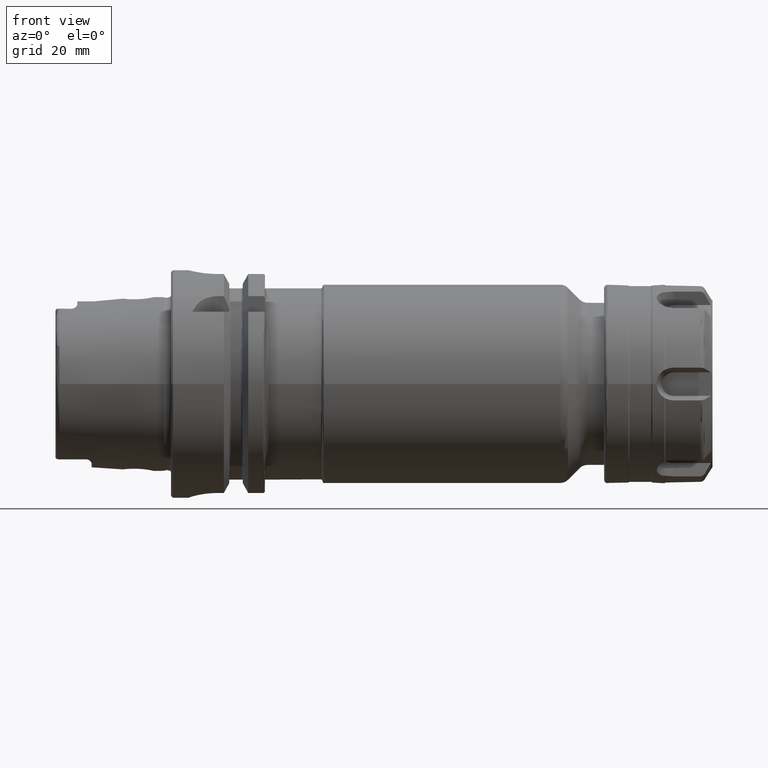
[diagram: clean part render]
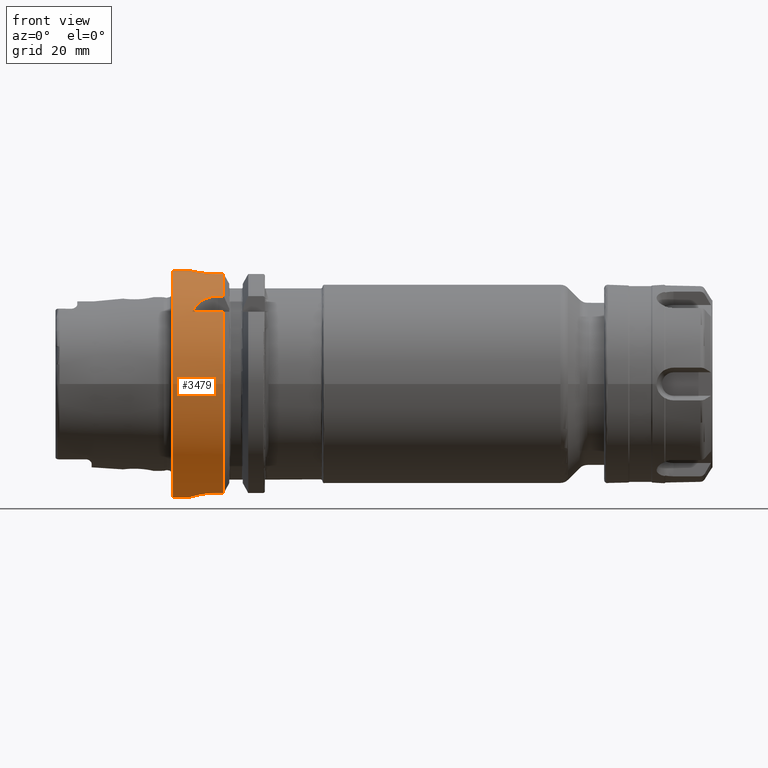
[diagram: same view with one face highlighted and labeled with its STEP entity id]
A machine part, front view. The second image highlights one B-rep face of the part: STEP entity #3479.
In plain terms, the highlighted cylindrical surface (bore or boss wall) has radius 31.5 mm, axis along (1, 0, 0).
Its self-contained STEP definition (entity closure, byte-faithful):
#84=FACE_BOUND('',#663,.T.);
#193=B_SPLINE_CURVE_WITH_KNOTS('',3,(#6184,#6185,#6186,#6187,#6188,#6189,
#6190,#6191,#6192,#6193,#6194,#6195,#6196,#6197,#6198,#6199,#6200,#6201,
#6202,#6203,#6204,#6205,#6206,#6207,#6208,#6209),.UNSPECIFIED.,.F.,.F.,
(4,2,2,2,2,2,2,2,2,2,2,2,4),(0.,0.188688694287612,0.377377388575223,0.56606194688798,
0.754746505200737,0.943431063513494,1.13211562182625,1.32080431611386,1.50949301040147,
1.69818170468909,1.8868703989767,2.07555495728945,2.26423951560221),
 .UNSPECIFIED.);
#194=B_SPLINE_CURVE_WITH_KNOTS('',3,(#6210,#6211,#6212,#6213,#6214,#6215,
#6216,#6217,#6218,#6219),.UNSPECIFIED.,.F.,.F.,(4,2,2,2,4),(2.26423951560221,
2.45292407391497,2.64160863222773,2.83029732651534,3.01898602080295),
 .UNSPECIFIED.);
#197=B_SPLINE_CURVE_WITH_KNOTS('',3,(#6276,#6277,#6278,#6279,#6280,#6281,
#6282,#6283,#6284,#6285,#6286,#6287),.UNSPECIFIED.,.F.,.F.,(4,2,2,2,2,4),
(1.1085154204615,1.31979218709236,1.52798350480179,1.73617482251122,1.90421770126337,
2.07226058001552),.UNSPECIFIED.);
#207=B_SPLINE_CURVE_WITH_KNOTS('',3,(#6456,#6457,#6458,#6459,#6460,#6461,
#6462,#6463,#6464,#6465),.UNSPECIFIED.,.F.,.F.,(4,2,2,2,4),(1.20927420824097,
1.5131742975437,1.81707438684643,2.12000449915965,2.42293461147287),
 .UNSPECIFIED.);
#210=B_SPLINE_CURVE_WITH_KNOTS('',3,(#6491,#6492,#6493,#6494,#6495,#6496,
#6497,#6498,#6499,#6500),.UNSPECIFIED.,.F.,.F.,(4,2,2,2,4),(0.,0.30293011231322,
0.605860224626439,0.90976031392917,1.2136604032319),.UNSPECIFIED.);
#220=B_SPLINE_CURVE_WITH_KNOTS('',3,(#6646,#6647,#6648,#6649,#6650,#6651,
#6652,#6653,#6654,#6655,#6656,#6657,#6658,#6659,#6660,#6661,#6662,#6663),
 .UNSPECIFIED.,.F.,.F.,(4,2,2,2,2,2,2,2,4),(0.,0.302805879979318,0.605611759958635,
0.908372461246501,1.21113316253437,1.51389386382223,1.8166545651101,2.11946044508942,
2.42226632506874),.UNSPECIFIED.);
#337=CYLINDRICAL_SURFACE('',#3855,31.5);
#453=FACE_OUTER_BOUND('',#662,.T.);
#662=EDGE_LOOP('',(#2748,#2749,#2750,#2751,#2752,#2753,#2754,#2755,#2756,
#2757,#2758,#2759,#2760,#2761,#2762,#2763,#2764,#2765));
#663=EDGE_LOOP('',(#2766,#2767));
#849=LINE('',#6251,#1017);
#854=LINE('',#6296,#1022);
#872=LINE('',#6473,#1040);
#873=LINE('',#6477,#1041);
#885=LINE('',#6640,#1053);
#888=LINE('',#6670,#1056);
#890=LINE('',#6676,#1058);
#1017=VECTOR('',#4416,10.);
#1022=VECTOR('',#4427,10.);
#1040=VECTOR('',#4491,10.);
#1041=VECTOR('',#4494,10.);
#1053=VECTOR('',#4572,10.);
#1056=VECTOR('',#4583,10.);
#1058=VECTOR('',#4591,31.5);
#1204=CIRCLE('',#3798,31.5);
#1205=CIRCLE('',#3799,31.5);
#1213=CIRCLE('',#3819,31.5);
#1214=CIRCLE('',#3821,31.5);
#1228=CIRCLE('',#3856,31.5);
#1229=CIRCLE('',#3857,31.5);
#1468=VERTEX_POINT('',#6181);
#1469=VERTEX_POINT('',#6183);
#1477=VERTEX_POINT('',#6248);
#1478=VERTEX_POINT('',#6250);
#1482=VERTEX_POINT('',#6275);
#1484=VERTEX_POINT('',#6292);
#1489=VERTEX_POINT('',#6308);
#1490=VERTEX_POINT('',#6310);
#1515=VERTEX_POINT('',#6454);
#1516=VERTEX_POINT('',#6455);
#1517=VERTEX_POINT('',#6475);
#1518=VERTEX_POINT('',#6476);
#1521=VERTEX_POINT('',#6490);
#1522=VERTEX_POINT('',#6505);
#1538=VERTEX_POINT('',#6637);
#1539=VERTEX_POINT('',#6639);
#1540=VERTEX_POINT('',#6645);
#1542=VERTEX_POINT('',#6675);
#1872=EDGE_CURVE('',#1469,#1468,#193,.T.);
#1873=EDGE_CURVE('',#1468,#1469,#194,.T.);
#1882=EDGE_CURVE('',#1478,#1477,#849,.T.);
#1888=EDGE_CURVE('',#1477,#1482,#197,.T.);
#1892=EDGE_CURVE('',#1482,#1484,#854,.T.);
#1898=EDGE_CURVE('',#1478,#1489,#1204,.T.);
#1899=EDGE_CURVE('',#1489,#1490,#1205,.T.);
#1933=EDGE_CURVE('',#1515,#1516,#207,.T.);
#1937=EDGE_CURVE('',#1516,#1490,#872,.T.);
#1938=EDGE_CURVE('',#1517,#1518,#873,.T.);
#1943=EDGE_CURVE('',#1518,#1521,#210,.T.);
#1945=EDGE_CURVE('',#1521,#1515,#1213,.T.);
#1946=EDGE_CURVE('',#1517,#1522,#1214,.T.);
#1978=EDGE_CURVE('',#1539,#1538,#885,.T.);
#1980=EDGE_CURVE('',#1538,#1540,#220,.T.);
#1984=EDGE_CURVE('',#1540,#1522,#888,.T.);
#1986=EDGE_CURVE('',#1539,#1484,#1228,.T.);
#1987=EDGE_CURVE('',#1489,#1542,#890,.T.);
#1988=EDGE_CURVE('',#1542,#1542,#1229,.T.);
#2748=ORIENTED_EDGE('',*,*,#1892,.T.);
#2749=ORIENTED_EDGE('',*,*,#1986,.F.);
#2750=ORIENTED_EDGE('',*,*,#1978,.T.);
#2751=ORIENTED_EDGE('',*,*,#1980,.T.);
#2752=ORIENTED_EDGE('',*,*,#1984,.T.);
#2753=ORIENTED_EDGE('',*,*,#1946,.F.);
#2754=ORIENTED_EDGE('',*,*,#1938,.T.);
#2755=ORIENTED_EDGE('',*,*,#1943,.T.);
#2756=ORIENTED_EDGE('',*,*,#1945,.T.);
#2757=ORIENTED_EDGE('',*,*,#1933,.T.);
#2758=ORIENTED_EDGE('',*,*,#1937,.T.);
#2759=ORIENTED_EDGE('',*,*,#1899,.F.);
#2760=ORIENTED_EDGE('',*,*,#1987,.T.);
#2761=ORIENTED_EDGE('',*,*,#1988,.T.);
#2762=ORIENTED_EDGE('',*,*,#1987,.F.);
#2763=ORIENTED_EDGE('',*,*,#1898,.F.);
#2764=ORIENTED_EDGE('',*,*,#1882,.T.);
#2765=ORIENTED_EDGE('',*,*,#1888,.T.);
#2766=ORIENTED_EDGE('',*,*,#1872,.T.);
#2767=ORIENTED_EDGE('',*,*,#1873,.T.);
#3479=ADVANCED_FACE('',(#453,#84),#337,.T.);
#3798=AXIS2_PLACEMENT_3D('',#6309,#4440,#4441);
#3799=AXIS2_PLACEMENT_3D('',#6311,#4442,#4443);
#3819=AXIS2_PLACEMENT_3D('',#6503,#4502,#4503);
#3821=AXIS2_PLACEMENT_3D('',#6506,#4506,#4507);
#3855=AXIS2_PLACEMENT_3D('',#6673,#4587,#4588);
#3856=AXIS2_PLACEMENT_3D('',#6674,#4589,#4590);
#3857=AXIS2_PLACEMENT_3D('',#6677,#4592,#4593);
#4416=DIRECTION('',(-1.,0.,0.));
#4427=DIRECTION('',(1.,0.,0.));
#4440=DIRECTION('center_axis',(1.,0.,0.));
#4441=DIRECTION('ref_axis',(0.,0.,-1.));
#4442=DIRECTION('center_axis',(1.,0.,0.));
#4443=DIRECTION('ref_axis',(0.,0.,-1.));
#4491=DIRECTION('',(1.,0.,0.));
#4494=DIRECTION('',(-1.,0.,0.));
#4502=DIRECTION('center_axis',(-1.,0.,0.));
#4503=DIRECTION('ref_axis',(0.,1.,0.));
#4506=DIRECTION('center_axis',(1.,0.,0.));
#4507=DIRECTION('ref_axis',(0.,0.,-1.));
#4572=DIRECTION('',(-1.,0.,0.));
#4583=DIRECTION('',(1.,0.,0.));
#4587=DIRECTION('center_axis',(1.,0.,0.));
#4588=DIRECTION('ref_axis',(0.,1.,0.));
#4589=DIRECTION('center_axis',(1.,0.,0.));
#4590=DIRECTION('ref_axis',(0.,0.,-1.));
#4591=DIRECTION('',(-1.,0.,0.));
#4592=DIRECTION('center_axis',(1.,0.,0.));
#4593=DIRECTION('ref_axis',(0.,0.,-1.));
#6181=CARTESIAN_POINT('',(12.,31.5,-6.12323399573677E-16));
#6183=CARTESIAN_POINT('',(7.,31.100643080168,5.));
#6184=CARTESIAN_POINT('Ctrl Pts',(7.,31.100643080168,5.));
#6185=CARTESIAN_POINT('Ctrl Pts',(6.37103768570796,31.100643080168,5.));
#6186=CARTESIAN_POINT('Ctrl Pts',(5.70089281579202,31.1216953112949,4.87408354368814));
#6187=CARTESIAN_POINT('Ctrl Pts',(4.46931934300962,31.1973810209855,4.36348784122736));
#6188=CARTESIAN_POINT('Ctrl Pts',(3.90779781350673,31.2508828501623,3.97886562537221));
#6189=CARTESIAN_POINT('Ctrl Pts',(3.021144092268,31.3510329557602,3.09221190413348));
#6190=CARTESIAN_POINT('Ctrl Pts',(2.63651425348544,31.4042391414288,2.5306861925578));
#6191=CARTESIAN_POINT('Ctrl Pts',(2.12591301120586,31.4792463697936,1.29909839144709));
#6192=CARTESIAN_POINT('Ctrl Pts',(2.,31.5,0.62894852770919));
#6193=CARTESIAN_POINT('Ctrl Pts',(2.,31.5,-0.62894852770919));
#6194=CARTESIAN_POINT('Ctrl Pts',(2.12591301120586,31.4792463697936,-1.29909839144709));
#6195=CARTESIAN_POINT('Ctrl Pts',(2.63651425348544,31.4042391414288,-2.5306861925578));
#6196=CARTESIAN_POINT('Ctrl Pts',(3.021144092268,31.3510329557602,-3.09221190413348));
#6197=CARTESIAN_POINT('Ctrl Pts',(3.90779781350673,31.2508828501623,-3.97886562537221));
#6198=CARTESIAN_POINT('Ctrl Pts',(4.46931934300962,31.1973810209855,-4.36348784122736));
#6199=CARTESIAN_POINT('Ctrl Pts',(5.70089281579202,31.1216953112949,-4.87408354368814));
#6200=CARTESIAN_POINT('Ctrl Pts',(6.37103768570796,31.100643080168,-5.));
#6201=CARTESIAN_POINT('Ctrl Pts',(7.62896231429204,31.100643080168,-5.));
#6202=CARTESIAN_POINT('Ctrl Pts',(8.29910718420798,31.1216953112949,-4.87408354368814));
#6203=CARTESIAN_POINT('Ctrl Pts',(9.53068065699038,31.1973810209855,-4.36348784122736));
#6204=CARTESIAN_POINT('Ctrl Pts',(10.0922021864933,31.2508828501623,-3.97886562537221));
#6205=CARTESIAN_POINT('Ctrl Pts',(10.978855907732,31.3510329557602,-3.09221190413348));
#6206=CARTESIAN_POINT('Ctrl Pts',(11.3634857465146,31.4042391414288,-2.53068619255779));
#6207=CARTESIAN_POINT('Ctrl Pts',(11.8740869887941,31.4792463697936,-1.29909839144708));
#6208=CARTESIAN_POINT('Ctrl Pts',(12.,31.5,-0.62894852770919));
#6209=CARTESIAN_POINT('Ctrl Pts',(12.,31.5,-4.16333634234434E-16));
#6210=CARTESIAN_POINT('Ctrl Pts',(12.,31.5,-1.11022302462516E-15));
#6211=CARTESIAN_POINT('Ctrl Pts',(12.,31.5,0.628948527709188));
#6212=CARTESIAN_POINT('Ctrl Pts',(11.8740869887941,31.4792463697936,1.29909839144708));
#6213=CARTESIAN_POINT('Ctrl Pts',(11.3634857465146,31.4042391414288,2.53068619255779));
#6214=CARTESIAN_POINT('Ctrl Pts',(10.978855907732,31.3510329557602,3.09221190413348));
#6215=CARTESIAN_POINT('Ctrl Pts',(10.0922021864933,31.2508828501623,3.97886562537221));
#6216=CARTESIAN_POINT('Ctrl Pts',(9.53068065699038,31.1973810209855,4.36348784122736));
#6217=CARTESIAN_POINT('Ctrl Pts',(8.29910718420798,31.1216953112949,4.87408354368814));
#6218=CARTESIAN_POINT('Ctrl Pts',(7.62896231429204,31.100643080168,5.));
#6219=CARTESIAN_POINT('Ctrl Pts',(7.,31.100643080168,5.));
#6248=CARTESIAN_POINT('',(5.88828609634419,-24.3361870472759,20.));
#6250=CARTESIAN_POINT('',(14.6225009252407,-24.3361870472759,20.));
#6251=CARTESIAN_POINT('',(7.56125046262034,-24.3361870472759,20.));
#6275=CARTESIAN_POINT('',(13.,-20.,24.3361870472759));
#6276=CARTESIAN_POINT('Ctrl Pts',(5.88828609634419,-24.3361870472759,20.));
#6277=CARTESIAN_POINT('Ctrl Pts',(6.11069532820048,-23.9044753723342,20.5253108035937));
#6278=CARTESIAN_POINT('Ctrl Pts',(6.38325999044306,-23.4713523250807,21.0173865932788));
#6279=CARTESIAN_POINT('Ctrl Pts',(7.044898076458,-22.6317364276543,21.9186738868096));
#6280=CARTESIAN_POINT('Ctrl Pts',(7.46714468561685,-22.1861072682036,22.3682920878559));
#6281=CARTESIAN_POINT('Ctrl Pts',(8.46725531403812,-21.3767026700071,23.143042657319));
#6282=CARTESIAN_POINT('Ctrl Pts',(9.04646427720221,-21.0147449478223,23.4683362269255));
#6283=CARTESIAN_POINT('Ctrl Pts',(10.1145001432702,-20.5200081116516,23.9011603796022));
#6284=CARTESIAN_POINT('Ctrl Pts',(10.670823971716,-20.3234249831704,24.0673462447194));
#6285=CARTESIAN_POINT('Ctrl Pts',(11.8334528721306,-20.063121855676,24.2847667849476));
#6286=CARTESIAN_POINT('Ctrl Pts',(12.4398570708262,-20.,24.3361870472759));
#6287=CARTESIAN_POINT('Ctrl Pts',(13.,-20.,24.3361870472759));
#6292=CARTESIAN_POINT('',(14.6225009252407,-20.,24.3361870472759));
#6296=CARTESIAN_POINT('',(7.56125046262035,-20.,24.3361870472759));
#6308=CARTESIAN_POINT('',(14.6225009252407,-31.5,-3.85763741731416E-15));
#6309=CARTESIAN_POINT('Origin',(14.6225009252407,0.,0.));
#6310=CARTESIAN_POINT('',(14.6225009252407,-9.,-30.1869176962472));
#6311=CARTESIAN_POINT('Origin',(14.6225009252407,0.,0.));
#6454=CARTESIAN_POINT('',(5.,-0.999999999999999,-31.4841229828623));
#6455=CARTESIAN_POINT('',(13.,-9.,-30.1869176962472));
#6456=CARTESIAN_POINT('Ctrl Pts',(5.,-0.999999999999997,-31.4841229828623));
#6457=CARTESIAN_POINT('Ctrl Pts',(5.,-2.01248971281587,-31.4519642432536));
#6458=CARTESIAN_POINT('Ctrl Pts',(5.2037733306458,-3.08756640398171,-31.3640631381934));
#6459=CARTESIAN_POINT('Ctrl Pts',(6.02370102555041,-5.05836608044729,-31.1070804719497));
#6460=CARTESIAN_POINT('Ctrl Pts',(6.63955745341061,-5.95454409907418,-30.9405445582004));
#6461=CARTESIAN_POINT('Ctrl Pts',(8.05472493283182,-7.36715009628369,-30.6348764237341));
#6462=CARTESIAN_POINT('Ctrl Pts',(8.9496642215883,-7.98063403850821,-30.4752177477269));
#6463=CARTESIAN_POINT('Ctrl Pts',(10.9171740660538,-8.79719825889174,-30.2496070227108));
#6464=CARTESIAN_POINT('Ctrl Pts',(11.9902329589559,-9.,-30.1869176962472));
#6465=CARTESIAN_POINT('Ctrl Pts',(13.,-9.,-30.1869176962472));
#6473=CARTESIAN_POINT('',(7.56125046262035,-8.99999999999999,-30.1869176962472));
#6475=CARTESIAN_POINT('',(14.6225009252407,9.,-30.1869176962472));
#6476=CARTESIAN_POINT('',(13.,9.00000000000001,-30.1869176962472));
#6477=CARTESIAN_POINT('',(7.56125046262034,9.00000000000001,-30.1869176962472));
#6490=CARTESIAN_POINT('',(5.,1.,-31.4841229828623));
#6491=CARTESIAN_POINT('Ctrl Pts',(13.,9.00000000000001,-30.1869176962472));
#6492=CARTESIAN_POINT('Ctrl Pts',(11.9902329589559,9.00000000000001,-30.1869176962472));
#6493=CARTESIAN_POINT('Ctrl Pts',(10.9171740660538,8.79719825889175,-30.2496070227108));
#6494=CARTESIAN_POINT('Ctrl Pts',(8.9496642215883,7.98063403850822,-30.4752177477269));
#6495=CARTESIAN_POINT('Ctrl Pts',(8.05472493283182,7.3671500962837,-30.6348764237341));
#6496=CARTESIAN_POINT('Ctrl Pts',(6.63955745341061,5.95454409907419,-30.9405445582004));
#6497=CARTESIAN_POINT('Ctrl Pts',(6.02370102555041,5.0583660804473,-31.1070804719497));
#6498=CARTESIAN_POINT('Ctrl Pts',(5.2037733306458,3.08756640398172,-31.3640631381934));
#6499=CARTESIAN_POINT('Ctrl Pts',(5.,2.01248971281588,-31.4519642432536));
#6500=CARTESIAN_POINT('Ctrl Pts',(5.,1.00000000000001,-31.4841229828623));
#6503=CARTESIAN_POINT('Origin',(5.,0.,0.));
#6505=CARTESIAN_POINT('',(14.6225009252407,8.,30.4671954731642));
#6506=CARTESIAN_POINT('Origin',(14.6225009252407,0.,0.));
#6637=CARTESIAN_POINT('',(13.,-8.,30.4671954731642));
#6639=CARTESIAN_POINT('',(14.6225009252407,-8.,30.4671954731642));
#6640=CARTESIAN_POINT('',(7.56125046262034,-8.,30.4671954731642));
#6645=CARTESIAN_POINT('',(13.,8.,30.4671954731642));
#6646=CARTESIAN_POINT('Ctrl Pts',(13.,-8.,30.4671954731643));
#6647=CARTESIAN_POINT('Ctrl Pts',(11.9906470667356,-8.,30.4671954731643));
#6648=CARTESIAN_POINT('Ctrl Pts',(10.9172075930168,-7.79737202490167,30.5225803085525));
#6649=CARTESIAN_POINT('Ctrl Pts',(8.94758399331801,-6.97961067526075,30.719895002943));
#6650=CARTESIAN_POINT('Ctrl Pts',(8.05099322370438,-6.36470172268915,30.8586830127239));
#6651=CARTESIAN_POINT('Ctrl Pts',(6.63540388828045,-4.94911238726521,31.1170994373341));
#6652=CARTESIAN_POINT('Ctrl Pts',(6.02041263015313,-4.05247770930662,31.2539072689014));
#6653=CARTESIAN_POINT('Ctrl Pts',(5.20259114887399,-2.08269813865027,31.4466478906396));
#6654=CARTESIAN_POINT('Ctrl Pts',(5.,-1.00920233762622,31.5));
#6655=CARTESIAN_POINT('Ctrl Pts',(5.,1.00920233762622,31.5));
#6656=CARTESIAN_POINT('Ctrl Pts',(5.20259114887399,2.08269813865027,31.4466478906396));
#6657=CARTESIAN_POINT('Ctrl Pts',(6.02041263015313,4.05247770930662,31.2539072689014));
#6658=CARTESIAN_POINT('Ctrl Pts',(6.63540388828045,4.94911238726521,31.1170994373341));
#6659=CARTESIAN_POINT('Ctrl Pts',(8.05099322370439,6.36470172268915,30.8586830127239));
#6660=CARTESIAN_POINT('Ctrl Pts',(8.94758399331801,6.97961067526075,30.719895002943));
#6661=CARTESIAN_POINT('Ctrl Pts',(10.9172075930168,7.79737202490167,30.5225803085525));
#6662=CARTESIAN_POINT('Ctrl Pts',(11.9906470667356,8.,30.4671954731643));
#6663=CARTESIAN_POINT('Ctrl Pts',(13.,8.,30.4671954731643));
#6670=CARTESIAN_POINT('',(7.56125046262035,8.,30.4671954731642));
#6673=CARTESIAN_POINT('Origin',(7.56125046262034,0.,0.));
#6674=CARTESIAN_POINT('Origin',(14.6225009252407,0.,0.));
#6675=CARTESIAN_POINT('',(0.5,-31.5,-3.85763741731416E-15));
#6676=CARTESIAN_POINT('',(7.56125046262034,-31.5,-3.85763741731416E-15));
#6677=CARTESIAN_POINT('Origin',(0.5,0.,0.));